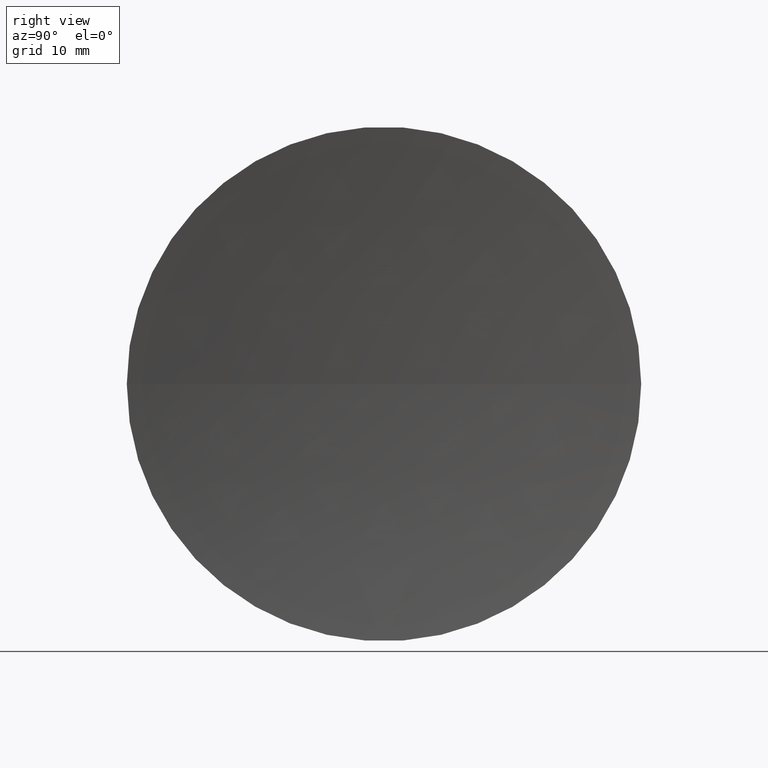
[diagram: clean part render]
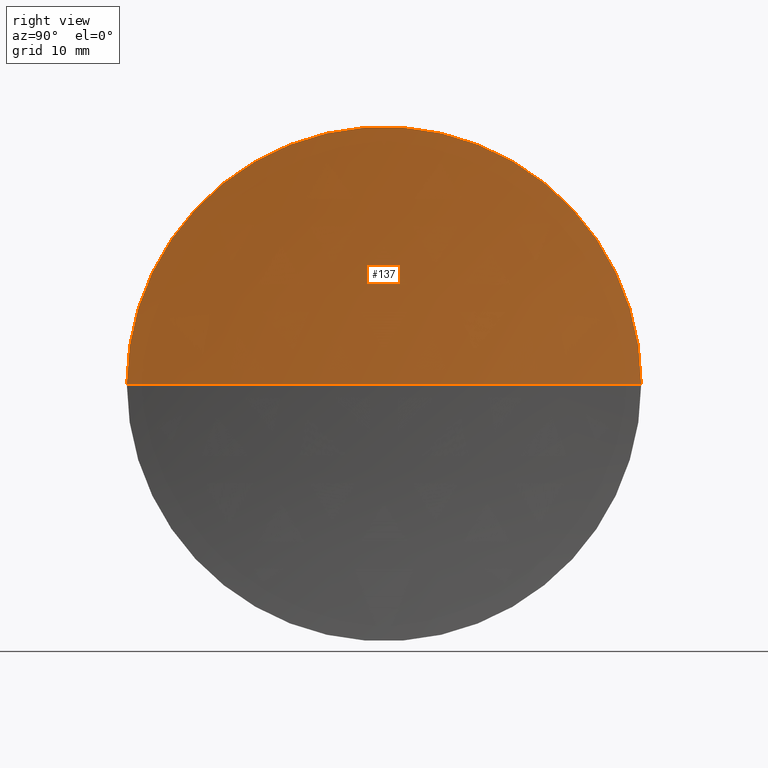
[diagram: same view with one face highlighted and labeled with its STEP entity id]
A machine part, right view. The second image highlights one B-rep face of the part: STEP entity #137.
In plain terms, the highlighted spherical surface has radius 193.2 mm.
Its self-contained STEP definition (entity closure, byte-faithful):
#12 = CARTESIAN_POINT ( 'NONE',  ( 445.0821311214901900, 130.4336809418806200, 0.0000000000000000000 ) ) ;
#14 = DIRECTION ( 'NONE',  ( -8.496118506040342700E-032, 1.224646799147353200E-016, -1.000000000000000000 ) ) ;
#30 = ORIENTED_EDGE ( 'NONE', *, *, #52, .F. ) ;
#37 = VERTEX_POINT ( 'NONE', #186 ) ;
#49 = ORIENTED_EDGE ( 'NONE', *, *, #122, .T. ) ;
#52 = EDGE_CURVE ( 'NONE', #65, #106, #163, .T. ) ;
#56 = ORIENTED_EDGE ( 'NONE', *, *, #83, .F. ) ;
#59 = CARTESIAN_POINT ( 'NONE',  ( 251.8821311214902000, 130.4336809418805100, 0.0000000000000000000 ) ) ;
#65 = VERTEX_POINT ( 'NONE', #144 ) ;
#69 = CARTESIAN_POINT ( 'NONE',  ( 445.0821311214901900, 130.4336809418806200, 0.0000000000000000000 ) ) ;
#77 = AXIS2_PLACEMENT_3D ( 'NONE', #160, #14, #117 ) ;
#83 = EDGE_CURVE ( 'NONE', #37, #65, #95, .T. ) ;
#89 = AXIS2_PLACEMENT_3D ( 'NONE', #99, #147, #102 ) ;
#95 = CIRCLE ( 'NONE', #89, 24.99999999999995400 ) ;
#99 = CARTESIAN_POINT ( 'NONE',  ( 253.5064541684908200, 130.4336809418806800, 0.0000000000000000000 ) ) ;
#102 = DIRECTION ( 'NONE',  ( 0.0000000000000000000, -1.000000000000000000, 0.0000000000000000000 ) ) ;
#106 = VERTEX_POINT ( 'NONE', #59 ) ;
#117 = DIRECTION ( 'NONE',  ( 0.0000000000000000000, 1.000000000000000000, 1.224646799147353200E-016 ) ) ;
#122 = EDGE_CURVE ( 'NONE', #37, #106, #154, .T. ) ;
#127 = AXIS2_PLACEMENT_3D ( 'NONE', #12, #135, #169 ) ;
#129 = SPHERICAL_SURFACE ( 'NONE', #127, 193.1999999999999900 ) ;
#135 = DIRECTION ( 'NONE',  ( 0.0000000000000000000, 0.0000000000000000000, -1.000000000000000000 ) ) ;
#137 = ADVANCED_FACE ( 'NONE', ( #165 ), #129, .F. ) ;
#139 = AXIS2_PLACEMENT_3D ( 'NONE', #69, #146, #159 ) ;
#144 = CARTESIAN_POINT ( 'NONE',  ( 253.5064541684908200, 155.4336809418807900, 0.0000000000000000000 ) ) ;
#146 = DIRECTION ( 'NONE',  ( 0.0000000000000000000, -0.0000000000000000000, 1.000000000000000000 ) ) ;
#147 = DIRECTION ( 'NONE',  ( -1.000000000000000000, -6.937607244762875000E-016, -0.0000000000000000000 ) ) ;
#154 = CIRCLE ( 'NONE', #77, 193.1999999999999900 ) ;
#159 = DIRECTION ( 'NONE',  ( 1.000000000000000000, 0.0000000000000000000, 0.0000000000000000000 ) ) ;
#160 = CARTESIAN_POINT ( 'NONE',  ( 445.0821311214901900, 130.4336809418806200, 0.0000000000000000000 ) ) ;
#163 = CIRCLE ( 'NONE', #139, 193.1999999999999300 ) ;
#165 = FACE_OUTER_BOUND ( 'NONE', #175, .T. ) ;
#169 = DIRECTION ( 'NONE',  ( -5.746495986672653100E-016, 1.000000000000000000, 0.0000000000000000000 ) ) ;
#175 = EDGE_LOOP ( 'NONE', ( #56, #49, #30 ) ) ;
#186 = CARTESIAN_POINT ( 'NONE',  ( 253.5064541684908200, 105.4336809418804000, -3.061616997868395700E-015 ) ) ;